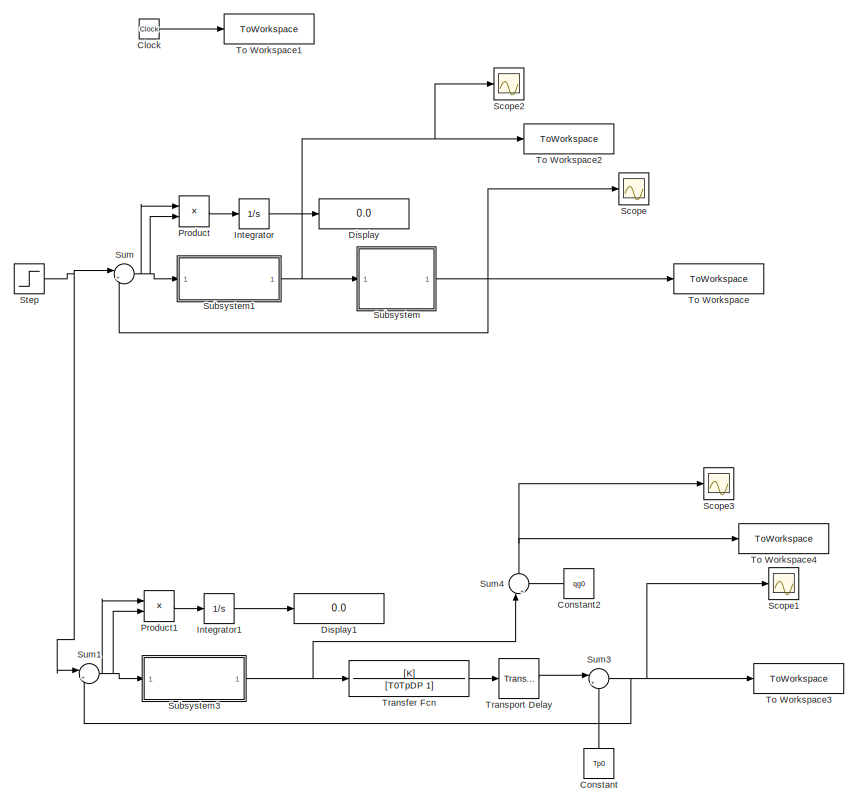
[diagram: root canvas - part 1/3, top left region]
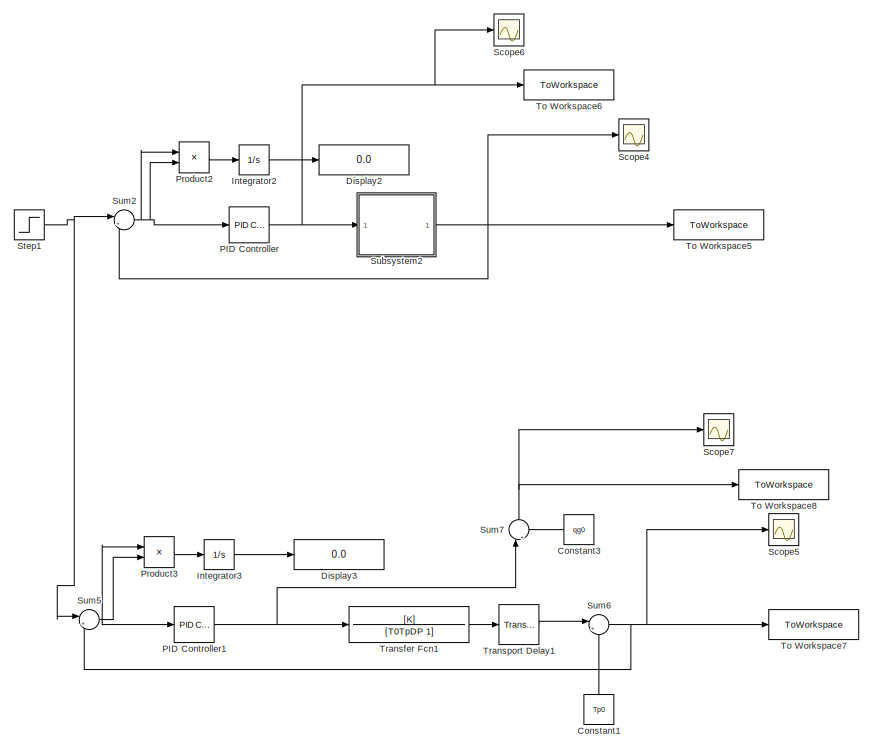
[diagram: root canvas - part 2/3, top right region]
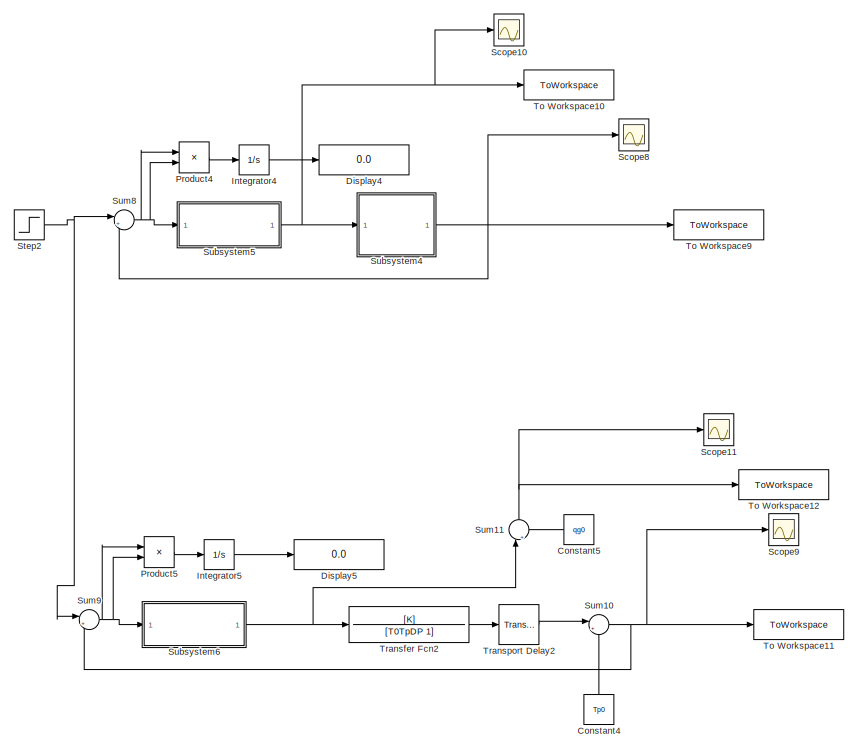
[diagram: root canvas - part 3/3, bottom left region]
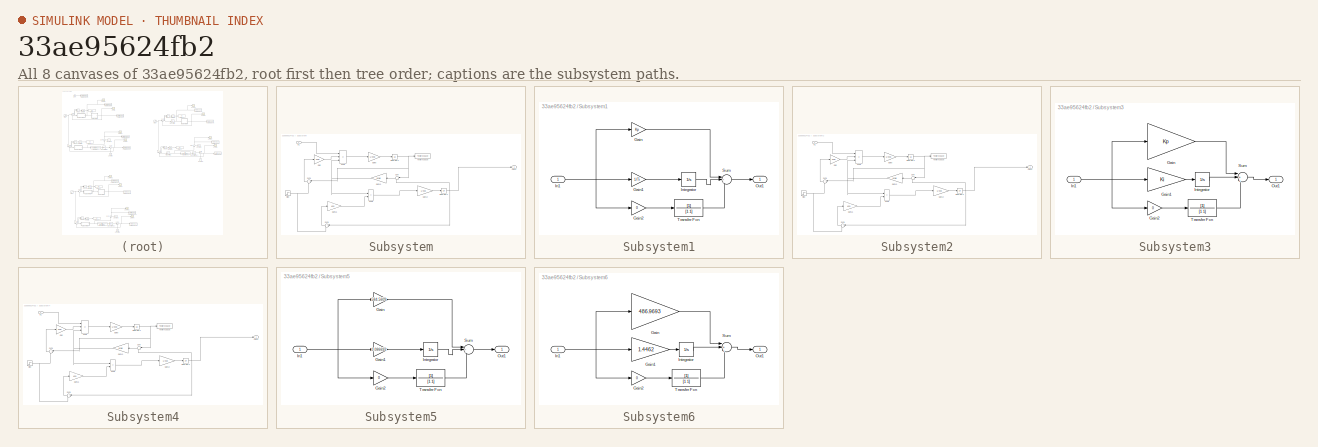
[diagram: thumbnail index - all 8 canvases of the model, root first then tree order]
MODEL slx_33ae95624fb2
KIND model
CONFIG AbsTol = auto
CONFIG EnableMultiTasking = off
CONFIG FixedStep = auto
CONFIG MaxStep = 0.1
CONFIG MinStep = auto
CONFIG RelTol = 1e-3
CONFIG SampleTimeConstraint = Unconstrained
CONFIG SolverName = VariableStepAuto
CONFIG StartTime = 0
CONFIG StopTime = t_simulation
BLOCK [Clock] Clock
  Decimation = 1
BLOCK [Constant] Constant
  NameLocation = right
  Value = Tp0
BLOCK [Constant] Constant1
  NameLocation = right
  Value = Tp0
BLOCK [Constant] Constant2
  NameLocation = top
  Value = qg0
BLOCK [Constant] Constant3
  NameLocation = top
  Value = qg0
BLOCK [Constant] Constant4
  NameLocation = right
  Value = Tp0
BLOCK [Constant] Constant5
  NameLocation = top
  Value = qg0
BLOCK [Display] Display
  Decimation = 1
BLOCK [Display] Display1
  Decimation = 1
BLOCK [Display] Display2
  Decimation = 1
BLOCK [Display] Display3
  Decimation = 1
BLOCK [Display] Display4
  Decimation = 1
BLOCK [Display] Display5
  Decimation = 1
BLOCK [Integrator] Integrator
BLOCK [Integrator] Integrator1
BLOCK [Integrator] Integrator2
BLOCK [Integrator] Integrator3
BLOCK [Integrator] Integrator4
BLOCK [Integrator] Integrator5
BLOCK [Reference] PID Controller  REF=slpidlib/PID Controller
  LibrarySourceBlock = simulink/Continuous/PID Controller
  SourceBlock = slpidlib/PID Controller
  SourceType = PID 1dof
BLOCK [Reference] PID Controller1  REF=slpidlib/PID Controller
  LibrarySourceBlock = simulink/Continuous/PID Controller
  SourceBlock = slpidlib/PID Controller
  SourceType = PID 1dof
BLOCK [Product] Product
BLOCK [Product] Product1
BLOCK [Product] Product2
BLOCK [Product] Product3
BLOCK [Product] Product4
BLOCK [Product] Product5
BLOCK [Scope] Scope
  Floating = off
  NumInputPorts = 1
  ScopeSpecificationString = Simulink.scopes.TimeScopeBlockCfg('CurrentConfiguration', extmgr.ConfigurationSet(extmgr.Configuration('Core','General UI',true),extmgr.Configuration('Core','Source UI',true),extmgr.Configuration('Sources','WiredSimulink',true),extmgr.Configuration('Visuals','Time Domain',true,'SerializedDisplays',{struct('MinYLimReal','-6.34886','MaxYLimReal','11.81654','YLabelReal','','MinYLimMag','0.00000','Max...<+1359ch>
BLOCK [Scope] Scope1
  Floating = off
  NumInputPorts = 1
  ScopeSpecificationString = Simulink.scopes.TimeScopeBlockCfg('CurrentConfiguration', extmgr.ConfigurationSet(extmgr.Configuration('Core','General UI',true),extmgr.Configuration('Core','Source UI',true),extmgr.Configuration('Sources','WiredSimulink',true,'DataLoggingVariableName','ScopeData1'),extmgr.Configuration('Visuals','Time Domain',true,'SerializedDisplays',{struct('MinYLimReal','-6.49678','MaxYLimReal','11.83298','YLa...<+1396ch>
BLOCK [Scope] Scope10
  Floating = off
  NumInputPorts = 1
  ScopeSpecificationString = Simulink.scopes.TimeScopeBlockCfg('CurrentConfiguration', extmgr.ConfigurationSet(extmgr.Configuration('Core','General UI',true),extmgr.Configuration('Core','Source UI',true),extmgr.Configuration('Sources','WiredSimulink',true,'DataLoggingVariableName','ScopeData1'),extmgr.Configuration('Visuals','Time Domain',true,'SerializedDisplays',{struct('MinYLimReal','-15339.87419','MaxYLimReal','21702.2429...<+1399ch>
BLOCK [Scope] Scope11
  Floating = off
  NumInputPorts = 1
  ScopeSpecificationString = Simulink.scopes.TimeScopeBlockCfg('CurrentConfiguration', extmgr.ConfigurationSet(extmgr.Configuration('Core','General UI',true),extmgr.Configuration('Core','Source UI',true),extmgr.Configuration('Sources','WiredSimulink',true,'DataLoggingVariableName','ScopeData2'),extmgr.Configuration('Visuals','Time Domain',true,'SerializedDisplays',{struct('MinYLimReal','-9826.94114','MaxYLimReal','12448.4715'...<+1418ch>
BLOCK [Scope] Scope2
  Floating = off
  NumInputPorts = 1
  ScopeSpecificationString = Simulink.scopes.TimeScopeBlockCfg('CurrentConfiguration', extmgr.ConfigurationSet(extmgr.Configuration('Core','General UI',true),extmgr.Configuration('Core','Source UI',true),extmgr.Configuration('Sources','WiredSimulink',true,'DataLoggingVariableName','ScopeData1'),extmgr.Configuration('Visuals','Time Domain',true,'SerializedDisplays',{struct('MinYLimReal','-15339.87419','MaxYLimReal','21702.2429...<+1399ch>
BLOCK [Scope] Scope3
  Floating = off
  NumInputPorts = 1
  ScopeSpecificationString = Simulink.scopes.TimeScopeBlockCfg('CurrentConfiguration', extmgr.ConfigurationSet(extmgr.Configuration('Core','General UI',true),extmgr.Configuration('Core','Source UI',true),extmgr.Configuration('Sources','WiredSimulink',true,'DataLoggingVariableName','ScopeData1'),extmgr.Configuration('Visuals','Time Domain',true,'SerializedDisplays',{struct('MinYLimReal','-9826.94114','MaxYLimReal','12448.4715'...<+1418ch>
BLOCK [Scope] Scope4
  Floating = off
  NumInputPorts = 1
  ScopeSpecificationString = Simulink.scopes.TimeScopeBlockCfg('CurrentConfiguration', extmgr.ConfigurationSet(extmgr.Configuration('Core','General UI',true),extmgr.Configuration('Core','Source UI',true),extmgr.Configuration('Sources','WiredSimulink',true,'DataLoggingVariableName','ScopeData1'),extmgr.Configuration('Visuals','Time Domain',true,'SerializedDisplays',{struct('MinYLimReal','-1.44129','MaxYLimReal','11.27125','YLa...<+1399ch>
BLOCK [Scope] Scope5
  Floating = off
  NumInputPorts = 1
  ScopeSpecificationString = Simulink.scopes.TimeScopeBlockCfg('CurrentConfiguration', extmgr.ConfigurationSet(extmgr.Configuration('Core','General UI',true),extmgr.Configuration('Core','Source UI',true),extmgr.Configuration('Sources','WiredSimulink',true,'DataLoggingVariableName','ScopeData2'),extmgr.Configuration('Visuals','Time Domain',true,'SerializedDisplays',{struct('MinYLimReal','-6.49681','MaxYLimReal','11.83298','YLa...<+1396ch>
BLOCK [Scope] Scope6
  Floating = off
  NumInputPorts = 1
  ScopeSpecificationString = Simulink.scopes.TimeScopeBlockCfg('CurrentConfiguration', extmgr.ConfigurationSet(extmgr.Configuration('Core','General UI',true),extmgr.Configuration('Core','Source UI',true),extmgr.Configuration('Sources','WiredSimulink',true,'DataLoggingVariableName','ScopeData3'),extmgr.Configuration('Visuals','Time Domain',true,'SerializedDisplays',{struct('MinYLimReal','-11359.77286','MaxYLimReal','17763.0326...<+1403ch>
BLOCK [Scope] Scope7
  Floating = off
  NumInputPorts = 1
  ScopeSpecificationString = Simulink.scopes.TimeScopeBlockCfg('CurrentConfiguration', extmgr.ConfigurationSet(extmgr.Configuration('Core','General UI',true),extmgr.Configuration('Core','Source UI',true),extmgr.Configuration('Sources','WiredSimulink',true,'DataLoggingVariableName','ScopeData4'),extmgr.Configuration('Visuals','Time Domain',true,'SerializedDisplays',{struct('MinYLimReal','-17834.92118','MaxYLimReal','21322.3852...<+1420ch>
BLOCK [Scope] Scope8
  Floating = off
  NumInputPorts = 1
  ScopeSpecificationString = Simulink.scopes.TimeScopeBlockCfg('CurrentConfiguration', extmgr.ConfigurationSet(extmgr.Configuration('Core','General UI',true),extmgr.Configuration('Core','Source UI',true),extmgr.Configuration('Sources','WiredSimulink',true,'DataLoggingVariableName','ScopeData3'),extmgr.Configuration('Visuals','Time Domain',true,'SerializedDisplays',{struct('MinYLimReal','-6.34886','MaxYLimReal','11.81654','YLa...<+1398ch>
BLOCK [Scope] Scope9
  Floating = off
  NumInputPorts = 1
  ScopeSpecificationString = Simulink.scopes.TimeScopeBlockCfg('CurrentConfiguration', extmgr.ConfigurationSet(extmgr.Configuration('Core','General UI',true),extmgr.Configuration('Core','Source UI',true),extmgr.Configuration('Sources','WiredSimulink',true,'DataLoggingVariableName','ScopeData4'),extmgr.Configuration('Visuals','Time Domain',true,'SerializedDisplays',{struct('MinYLimReal','-0.85226','MaxYLimReal','11.20581','YLa...<+1396ch>
BLOCK [Step] Step
  After = Tzad + dTzad
  Before = 1
  SampleTime = 0
  Time = t0
BLOCK [Step] Step1
  After = Tzad + dTzad
  Before = 1
  SampleTime = 0
  Time = t0
BLOCK [Step] Step2
  After = Tzad + dTzad
  Before = 1
  SampleTime = 0
  Time = t0
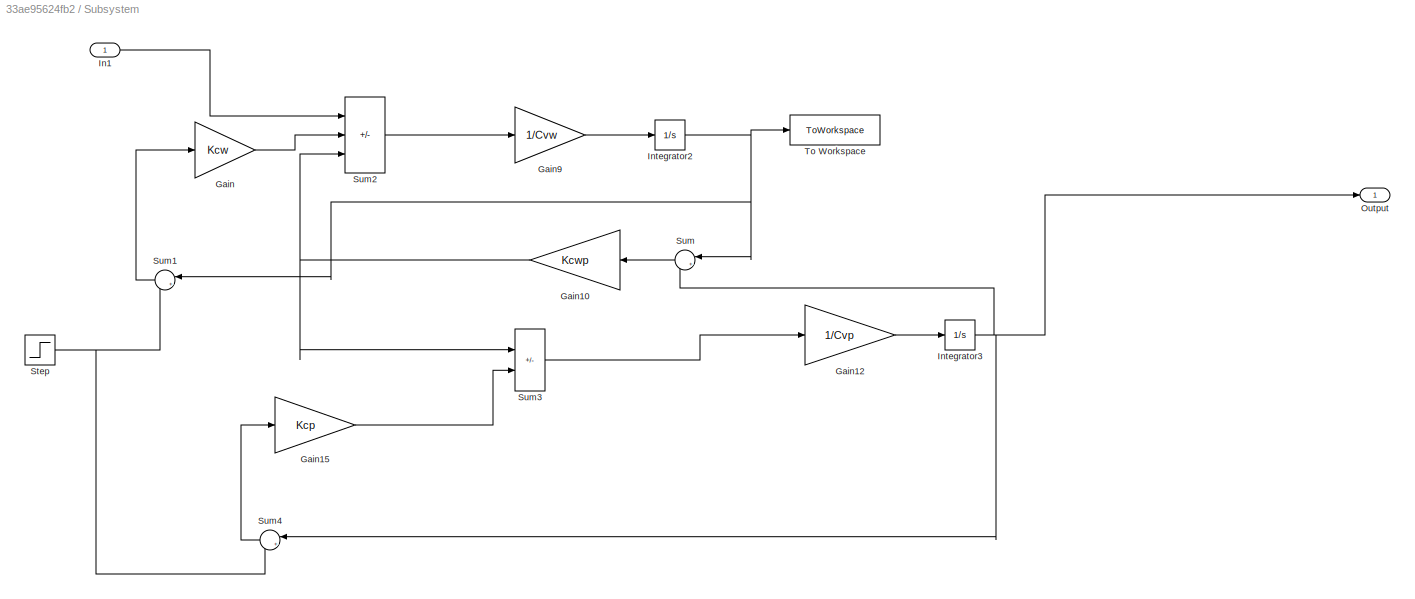
BLOCK [SubSystem] Subsystem
BLOCK [Gain] Subsystem/Gain
  Gain = Kcw
BLOCK [Gain] Subsystem/Gain10
  Gain = Kcwp
  NameLocation = top
BLOCK [Gain] Subsystem/Gain12
  Gain = 1/Cvp
BLOCK [Gain] Subsystem/Gain15
  Gain = Kcp
BLOCK [Gain] Subsystem/Gain9
  Gain = 1/Cvw
BLOCK [Inport] Subsystem/In1
BLOCK [Integrator] Subsystem/Integrator2
  InitialCondition = Twew0
BLOCK [Integrator] Subsystem/Integrator3
  InitialCondition = Tp0
BLOCK [Outport] Subsystem/Output
BLOCK [Step] Subsystem/Step
  After = Tzew0 + dTzew
  Before = Tzew0
  SampleTime = 0
  Time = t0
BLOCK [Sum] Subsystem/Sum
  Inputs = |+-
  NameLocation = top
BLOCK [Sum] Subsystem/Sum1
  Inputs = |+-
  NameLocation = top
BLOCK [Sum] Subsystem/Sum2
  IconShape = rectangular
  Inputs = +--
BLOCK [Sum] Subsystem/Sum3
  IconShape = rectangular
  Inputs = |+-
BLOCK [Sum] Subsystem/Sum4
  Inputs = |+-
  NameLocation = top
BLOCK [ToWorkspace] Subsystem/To Workspace
  FixptAsFi = on
  MaxDataPoints = inf
  SampleTime = -1
  VariableName = Twew
BLOCK [SubSystem] Subsystem1
BLOCK [Gain] Subsystem1/Gain
  Gain = Kp
BLOCK [Gain] Subsystem1/Gain1
  Gain = 1/Ti
BLOCK [Gain] Subsystem1/Gain2
  Gain = 0
BLOCK [Inport] Subsystem1/In1
BLOCK [Integrator] Subsystem1/Integrator
  InitialCondition = qg0Model
BLOCK [Outport] Subsystem1/Out1
BLOCK [Sum] Subsystem1/Sum
  Inputs = |+++
BLOCK [TransferFcn] Subsystem1/Transfer Fcn
  Denominator = [1 1]
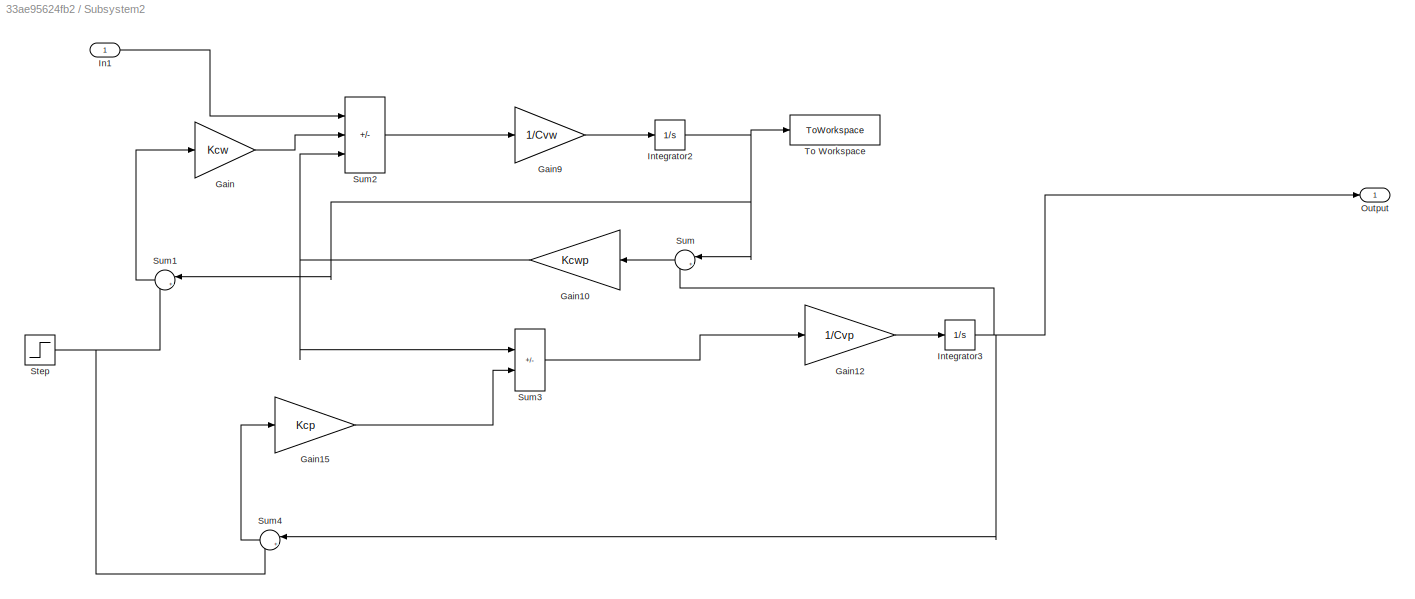
BLOCK [SubSystem] Subsystem2
BLOCK [Gain] Subsystem2/Gain
  Gain = Kcw
BLOCK [Gain] Subsystem2/Gain10
  Gain = Kcwp
  NameLocation = top
BLOCK [Gain] Subsystem2/Gain12
  Gain = 1/Cvp
BLOCK [Gain] Subsystem2/Gain15
  Gain = Kcp
BLOCK [Gain] Subsystem2/Gain9
  Gain = 1/Cvw
BLOCK [Inport] Subsystem2/In1
BLOCK [Integrator] Subsystem2/Integrator2
  InitialCondition = Twew0
BLOCK [Integrator] Subsystem2/Integrator3
  InitialCondition = Tp0
BLOCK [Outport] Subsystem2/Output
BLOCK [Step] Subsystem2/Step
  After = Tzew0 + dTzew
  Before = Tzew0
  SampleTime = 0
  Time = t0
BLOCK [Sum] Subsystem2/Sum
  Inputs = |+-
  NameLocation = top
BLOCK [Sum] Subsystem2/Sum1
  Inputs = |+-
  NameLocation = top
BLOCK [Sum] Subsystem2/Sum2
  IconShape = rectangular
  Inputs = +--
BLOCK [Sum] Subsystem2/Sum3
  IconShape = rectangular
  Inputs = |+-
BLOCK [Sum] Subsystem2/Sum4
  Inputs = |+-
  NameLocation = top
BLOCK [ToWorkspace] Subsystem2/To Workspace
  FixptAsFi = on
  MaxDataPoints = inf
  SampleTime = -1
  VariableName = Twew1
BLOCK [SubSystem] Subsystem3
BLOCK [Gain] Subsystem3/Gain
  Gain = Kp
BLOCK [Gain] Subsystem3/Gain1
  Gain = Ki
BLOCK [Gain] Subsystem3/Gain2
  Gain = 0
BLOCK [Inport] Subsystem3/In1
BLOCK [Integrator] Subsystem3/Integrator
BLOCK [Outport] Subsystem3/Out1
BLOCK [Sum] Subsystem3/Sum
  Inputs = |+++
BLOCK [TransferFcn] Subsystem3/Transfer Fcn
  Denominator = [1 1]
BLOCK [SubSystem] Subsystem4
BLOCK [Gain] Subsystem4/Gain
  Gain = Kcw
BLOCK [Gain] Subsystem4/Gain10
  Gain = Kcwp
  NameLocation = top
BLOCK [Gain] Subsystem4/Gain12
  Gain = 1/Cvp
BLOCK [Gain] Subsystem4/Gain15
  Gain = Kcp
BLOCK [Gain] Subsystem4/Gain9
  Gain = 1/Cvw
BLOCK [Inport] Subsystem4/In1
BLOCK [Integrator] Subsystem4/Integrator2
  InitialCondition = Twew0
BLOCK [Integrator] Subsystem4/Integrator3
  InitialCondition = Tp0
BLOCK [Outport] Subsystem4/Output
BLOCK [Step] Subsystem4/Step
  After = Tzew0 + dTzew
  Before = Tzew0
  SampleTime = 0
  Time = t0
BLOCK [Sum] Subsystem4/Sum
  Inputs = |+-
  NameLocation = top
BLOCK [Sum] Subsystem4/Sum1
  Inputs = |+-
  NameLocation = top
BLOCK [Sum] Subsystem4/Sum2
  IconShape = rectangular
  Inputs = +--
BLOCK [Sum] Subsystem4/Sum3
  IconShape = rectangular
  Inputs = |+-
BLOCK [Sum] Subsystem4/Sum4
  Inputs = |+-
  NameLocation = top
BLOCK [ToWorkspace] Subsystem4/To Workspace
  FixptAsFi = on
  MaxDataPoints = inf
  SampleTime = -1
  VariableName = Twew2
BLOCK [SubSystem] Subsystem5
BLOCK [Gain] Subsystem5/Gain
  Gain = 584.5609
BLOCK [Gain] Subsystem5/Gain1
  Gain = 0.086692
BLOCK [Gain] Subsystem5/Gain2
  Gain = 0
BLOCK [Inport] Subsystem5/In1
BLOCK [Integrator] Subsystem5/Integrator
  InitialCondition = qg0Model
BLOCK [Outport] Subsystem5/Out1
BLOCK [Sum] Subsystem5/Sum
  Inputs = |+++
BLOCK [TransferFcn] Subsystem5/Transfer Fcn
  Denominator = [1 1]
BLOCK [SubSystem] Subsystem6
BLOCK [Gain] Subsystem6/Gain
  Gain = 486.9693
BLOCK [Gain] Subsystem6/Gain1
  Gain = 1.4462
BLOCK [Gain] Subsystem6/Gain2
  Gain = 0
BLOCK [Inport] Subsystem6/In1
BLOCK [Integrator] Subsystem6/Integrator
BLOCK [Outport] Subsystem6/Out1
BLOCK [Sum] Subsystem6/Sum
  Inputs = |+++
BLOCK [TransferFcn] Subsystem6/Transfer Fcn
  Denominator = [1 1]
BLOCK [Sum] Sum
  Inputs = |+-
BLOCK [Sum] Sum1
  Inputs = |+-
BLOCK [Sum] Sum10
  Inputs = |++
BLOCK [Sum] Sum11
  Inputs = |++
  NameLocation = right
BLOCK [Sum] Sum2
  Inputs = |+-
BLOCK [Sum] Sum3
  Inputs = |++
BLOCK [Sum] Sum4
  Inputs = |++
  NameLocation = right
BLOCK [Sum] Sum5
  Inputs = |+-
BLOCK [Sum] Sum6
  Inputs = |++
BLOCK [Sum] Sum7
  Inputs = |++
  NameLocation = right
BLOCK [Sum] Sum8
  Inputs = |+-
BLOCK [Sum] Sum9
  Inputs = |+-
BLOCK [ToWorkspace] To Workspace
  FixptAsFi = on
  MaxDataPoints = inf
  SampleTime = -1
  VariableName = Tp0biekt
BLOCK [ToWorkspace] To Workspace1
  FixptAsFi = on
  MaxDataPoints = inf
  SampleTime = -1
  VariableName = t
BLOCK [ToWorkspace] To Workspace10
  FixptAsFi = on
  MaxDataPoints = inf
  SampleTime = -1
  VariableName = q0ObiektPIDNASTAWY
BLOCK [ToWorkspace] To Workspace11
  FixptAsFi = on
  MaxDataPoints = inf
  SampleTime = -1
  VariableName = Tp0ModelPIDNASTAWY
BLOCK [ToWorkspace] To Workspace12
  FixptAsFi = on
  MaxDataPoints = inf
  SampleTime = -1
  VariableName = q0ModelPIDNASTAWY
BLOCK [ToWorkspace] To Workspace2
  FixptAsFi = on
  MaxDataPoints = inf
  SampleTime = -1
  VariableName = q0Obiekt
BLOCK [ToWorkspace] To Workspace3
  FixptAsFi = on
  MaxDataPoints = inf
  SampleTime = -1
  VariableName = TpModel
BLOCK [ToWorkspace] To Workspace4
  FixptAsFi = on
  MaxDataPoints = inf
  SampleTime = -1
  VariableName = q0Model
BLOCK [ToWorkspace] To Workspace5
  FixptAsFi = on
  MaxDataPoints = inf
  SampleTime = -1
  VariableName = Tp0biektPIDcontroller
BLOCK [ToWorkspace] To Workspace6
  FixptAsFi = on
  MaxDataPoints = inf
  SampleTime = -1
  VariableName = q0ObiektPIDcontroller
BLOCK [ToWorkspace] To Workspace7
  FixptAsFi = on
  MaxDataPoints = inf
  SampleTime = -1
  VariableName = TpModelPIDcontroller
BLOCK [ToWorkspace] To Workspace8
  FixptAsFi = on
  MaxDataPoints = inf
  SampleTime = -1
  VariableName = q0ModelPIDcontroller
BLOCK [ToWorkspace] To Workspace9
  FixptAsFi = on
  MaxDataPoints = inf
  SampleTime = -1
  VariableName = Tp0biektPIDNASTAWY
BLOCK [TransferFcn] Transfer Fcn
  Denominator = [T0TpDP 1]
  Numerator = [K]
BLOCK [TransferFcn] Transfer Fcn1
  Denominator = [T0TpDP 1]
  Numerator = [K]
BLOCK [TransferFcn] Transfer Fcn2
  Denominator = [T0TpDP 1]
  Numerator = [K]
BLOCK [TransportDelay] Transport Delay
  DelayTime = 86
BLOCK [TransportDelay] Transport Delay1
  DelayTime = 86
BLOCK [TransportDelay] Transport Delay2
  DelayTime = 86
LINE Clock:1 -> To Workspace1:1
LINE Constant1:1 -> Sum6:2
LINE Constant2:1 -> Sum4:2
LINE Constant3:1 -> Sum7:2
LINE Constant4:1 -> Sum10:2
LINE Constant5:1 -> Sum11:2
LINE Constant:1 -> Sum3:2
LINE Integrator1:1 -> Display1:1
LINE Integrator2:1 -> Display2:1
LINE Integrator3:1 -> Display3:1
LINE Integrator4:1 -> Display4:1
LINE Integrator5:1 -> Display5:1
LINE Integrator:1 -> Display:1
NET PID Controller1:1 -> Sum7:1, Transfer Fcn1:1
NET PID Controller:1 -> Scope6:1, Subsystem2:1, To Workspace6:1
LINE Product1:1 -> Integrator1:1
LINE Product2:1 -> Integrator2:1
LINE Product3:1 -> Integrator3:1
LINE Product4:1 -> Integrator4:1
LINE Product5:1 -> Integrator5:1
LINE Product:1 -> Integrator:1
NET Step1:1 -> Sum2:1, Sum5:1
NET Step2:1 -> Sum8:1, Sum9:1
NET Step:1 -> Sum1:1, Sum:1
NET Subsystem/Gain10:1 -> Subsystem/Sum2:3, Subsystem/Sum3:1
LINE Subsystem/Gain12:1 -> Subsystem/Integrator3:1
LINE Subsystem/Gain15:1 -> Subsystem/Sum3:2
LINE Subsystem/Gain9:1 -> Subsystem/Integrator2:1
LINE Subsystem/Gain:1 -> Subsystem/Sum2:2
LINE Subsystem/In1:1 -> Subsystem/Sum2:1
NET Subsystem/Integrator2:1 -> Subsystem/Sum1:1, Subsystem/Sum:1, Subsystem/To Workspace:1
NET Subsystem/Integrator3:1 -> Subsystem/Output:1, Subsystem/Sum4:1, Subsystem/Sum:2
NET Subsystem/Step:1 -> Subsystem/Sum1:2, Subsystem/Sum4:2
LINE Subsystem/Sum1:1 -> Subsystem/Gain:1
LINE Subsystem/Sum2:1 -> Subsystem/Gain9:1
LINE Subsystem/Sum3:1 -> Subsystem/Gain12:1
LINE Subsystem/Sum4:1 -> Subsystem/Gain15:1
LINE Subsystem/Sum:1 -> Subsystem/Gain10:1
LINE Subsystem1/Gain1:1 -> Subsystem1/Integrator:1
LINE Subsystem1/Gain2:1 -> Subsystem1/Transfer Fcn:1
LINE Subsystem1/Gain:1 -> Subsystem1/Sum:1
NET Subsystem1/In1:1 -> Subsystem1/Gain1:1, Subsystem1/Gain2:1, Subsystem1/Gain:1
LINE Subsystem1/Integrator:1 -> Subsystem1/Sum:2
LINE Subsystem1/Sum:1 -> Subsystem1/Out1:1
LINE Subsystem1/Transfer Fcn:1 -> Subsystem1/Sum:3
NET Subsystem1:1 -> Scope2:1, Subsystem:1, To Workspace2:1
NET Subsystem2/Gain10:1 -> Subsystem2/Sum2:3, Subsystem2/Sum3:1
LINE Subsystem2/Gain12:1 -> Subsystem2/Integrator3:1
LINE Subsystem2/Gain15:1 -> Subsystem2/Sum3:2
LINE Subsystem2/Gain9:1 -> Subsystem2/Integrator2:1
LINE Subsystem2/Gain:1 -> Subsystem2/Sum2:2
LINE Subsystem2/In1:1 -> Subsystem2/Sum2:1
NET Subsystem2/Integrator2:1 -> Subsystem2/Sum1:1, Subsystem2/Sum:1, Subsystem2/To Workspace:1
NET Subsystem2/Integrator3:1 -> Subsystem2/Output:1, Subsystem2/Sum4:1, Subsystem2/Sum:2
NET Subsystem2/Step:1 -> Subsystem2/Sum1:2, Subsystem2/Sum4:2
LINE Subsystem2/Sum1:1 -> Subsystem2/Gain:1
LINE Subsystem2/Sum2:1 -> Subsystem2/Gain9:1
LINE Subsystem2/Sum3:1 -> Subsystem2/Gain12:1
LINE Subsystem2/Sum4:1 -> Subsystem2/Gain15:1
LINE Subsystem2/Sum:1 -> Subsystem2/Gain10:1
NET Subsystem2:1 -> Scope4:1, Sum2:2, To Workspace5:1
LINE Subsystem3/Gain1:1 -> Subsystem3/Integrator:1
LINE Subsystem3/Gain2:1 -> Subsystem3/Transfer Fcn:1
LINE Subsystem3/Gain:1 -> Subsystem3/Sum:1
NET Subsystem3/In1:1 -> Subsystem3/Gain1:1, Subsystem3/Gain2:1, Subsystem3/Gain:1
LINE Subsystem3/Integrator:1 -> Subsystem3/Sum:2
LINE Subsystem3/Sum:1 -> Subsystem3/Out1:1
LINE Subsystem3/Transfer Fcn:1 -> Subsystem3/Sum:3
NET Subsystem3:1 -> Sum4:1, Transfer Fcn:1
NET Subsystem4/Gain10:1 -> Subsystem4/Sum2:3, Subsystem4/Sum3:1
LINE Subsystem4/Gain12:1 -> Subsystem4/Integrator3:1
LINE Subsystem4/Gain15:1 -> Subsystem4/Sum3:2
LINE Subsystem4/Gain9:1 -> Subsystem4/Integrator2:1
LINE Subsystem4/Gain:1 -> Subsystem4/Sum2:2
LINE Subsystem4/In1:1 -> Subsystem4/Sum2:1
NET Subsystem4/Integrator2:1 -> Subsystem4/Sum1:1, Subsystem4/Sum:1, Subsystem4/To Workspace:1
NET Subsystem4/Integrator3:1 -> Subsystem4/Output:1, Subsystem4/Sum4:1, Subsystem4/Sum:2
NET Subsystem4/Step:1 -> Subsystem4/Sum1:2, Subsystem4/Sum4:2
LINE Subsystem4/Sum1:1 -> Subsystem4/Gain:1
LINE Subsystem4/Sum2:1 -> Subsystem4/Gain9:1
LINE Subsystem4/Sum3:1 -> Subsystem4/Gain12:1
LINE Subsystem4/Sum4:1 -> Subsystem4/Gain15:1
LINE Subsystem4/Sum:1 -> Subsystem4/Gain10:1
NET Subsystem4:1 -> Scope8:1, Sum8:2, To Workspace9:1
LINE Subsystem5/Gain1:1 -> Subsystem5/Integrator:1
LINE Subsystem5/Gain2:1 -> Subsystem5/Transfer Fcn:1
LINE Subsystem5/Gain:1 -> Subsystem5/Sum:1
NET Subsystem5/In1:1 -> Subsystem5/Gain1:1, Subsystem5/Gain2:1, Subsystem5/Gain:1
LINE Subsystem5/Integrator:1 -> Subsystem5/Sum:2
LINE Subsystem5/Sum:1 -> Subsystem5/Out1:1
LINE Subsystem5/Transfer Fcn:1 -> Subsystem5/Sum:3
NET Subsystem5:1 -> Scope10:1, Subsystem4:1, To Workspace10:1
LINE Subsystem6/Gain1:1 -> Subsystem6/Integrator:1
LINE Subsystem6/Gain2:1 -> Subsystem6/Transfer Fcn:1
LINE Subsystem6/Gain:1 -> Subsystem6/Sum:1
NET Subsystem6/In1:1 -> Subsystem6/Gain1:1, Subsystem6/Gain2:1, Subsystem6/Gain:1
LINE Subsystem6/Integrator:1 -> Subsystem6/Sum:2
LINE Subsystem6/Sum:1 -> Subsystem6/Out1:1
LINE Subsystem6/Transfer Fcn:1 -> Subsystem6/Sum:3
NET Subsystem6:1 -> Sum11:1, Transfer Fcn2:1
NET Subsystem:1 -> Scope:1, Sum:2, To Workspace:1
NET Sum10:1 -> Scope9:1, Sum9:2, To Workspace11:1
NET Sum11:1 -> Scope11:1, To Workspace12:1
NET Sum1:1 -> Product1:1, Product1:2, Subsystem3:1
NET Sum2:1 -> PID Controller:1, Product2:1, Product2:2
NET Sum3:1 -> Scope1:1, Sum1:2, To Workspace3:1
NET Sum4:1 -> Scope3:1, To Workspace4:1
NET Sum5:1 -> PID Controller1:1, Product3:1, Product3:2
NET Sum6:1 -> Scope5:1, Sum5:2, To Workspace7:1
NET Sum7:1 -> Scope7:1, To Workspace8:1
NET Sum8:1 -> Product4:1, Product4:2, Subsystem5:1
NET Sum9:1 -> Product5:1, Product5:2, Subsystem6:1
NET Sum:1 -> Product:1, Product:2, Subsystem1:1
LINE Transfer Fcn1:1 -> Transport Delay1:1
LINE Transfer Fcn2:1 -> Transport Delay2:1
LINE Transfer Fcn:1 -> Transport Delay:1
LINE Transport Delay1:1 -> Sum6:1
LINE Transport Delay2:1 -> Sum10:1
LINE Transport Delay:1 -> Sum3:1
note: NET lines group one-source signal fan-out (src -> all destinations, sorted); 1:1 wires keep LINE
